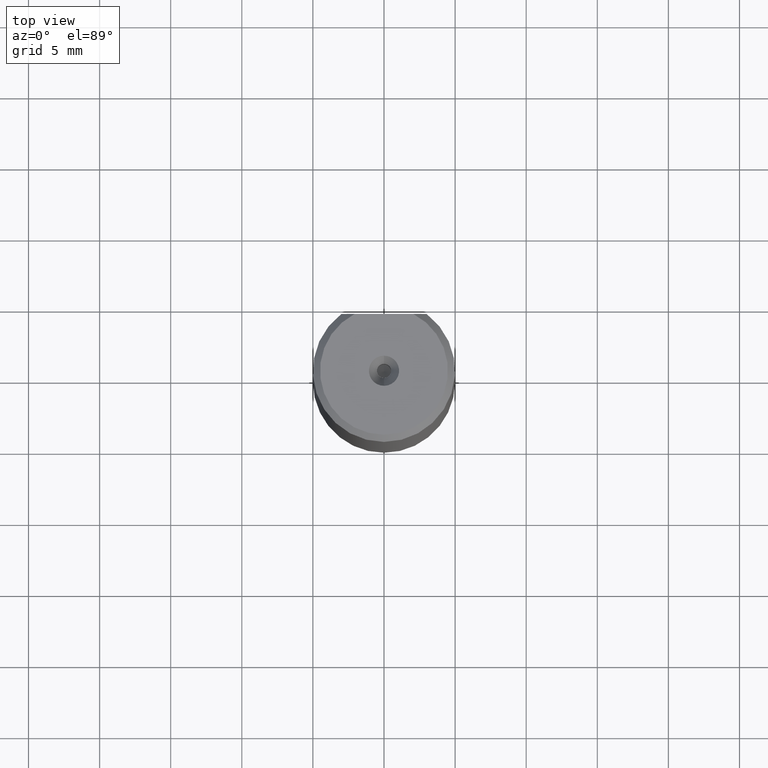
[diagram: clean part render]
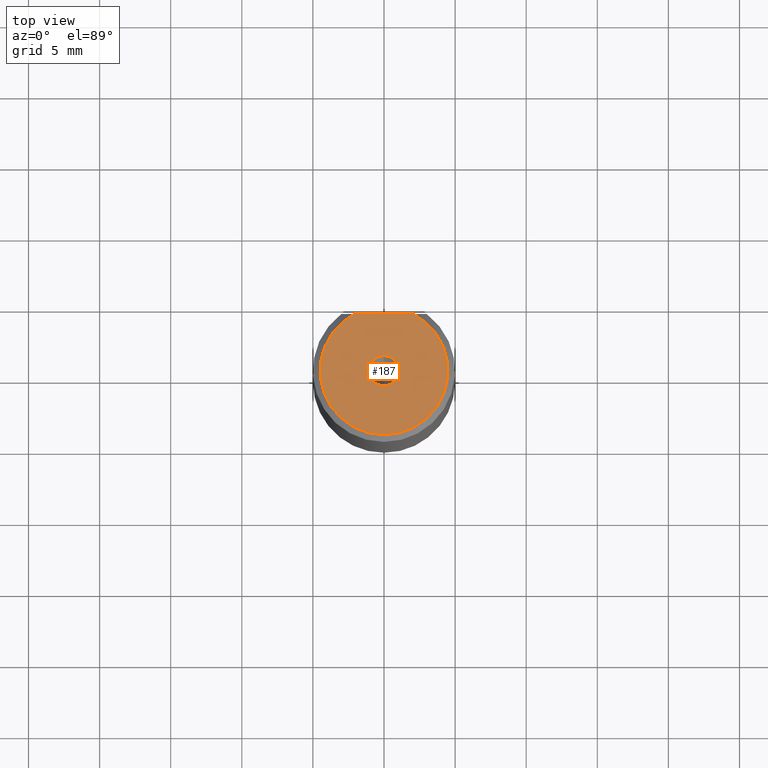
[diagram: same view with one face highlighted and labeled with its STEP entity id]
A machine part, top view. The second image highlights one B-rep face of the part: STEP entity #187.
In plain terms, the highlighted planar face has unit normal (0, 0, 1).
Its self-contained STEP definition (entity closure, byte-faithful):
#187=ADVANCED_FACE('',(#271,#272),#251,.T.);
#251=PLANE('',#1223);
#271=FACE_BOUND('',#277,.T.);
#272=FACE_BOUND('',#278,.T.);
#277=EDGE_LOOP('',(#488,#489,#490));
#278=EDGE_LOOP('',(#491,#492));
#344=LINE('',#1719,#416);
#416=VECTOR('',#1375,1.);
#488=ORIENTED_EDGE('',*,*,#936,.F.);
#489=ORIENTED_EDGE('',*,*,#937,.F.);
#490=ORIENTED_EDGE('',*,*,#938,.T.);
#491=ORIENTED_EDGE('',*,*,#939,.F.);
#492=ORIENTED_EDGE('',*,*,#940,.F.);
#826=VERTEX_POINT('',#1715);
#827=VERTEX_POINT('',#1716);
#828=VERTEX_POINT('',#1718);
#829=VERTEX_POINT('',#1721);
#830=VERTEX_POINT('',#1722);
#936=EDGE_CURVE('',#826,#827,#1105,.T.);
#937=EDGE_CURVE('',#828,#826,#1106,.T.);
#938=EDGE_CURVE('',#828,#827,#344,.T.);
#939=EDGE_CURVE('',#829,#830,#1107,.T.);
#940=EDGE_CURVE('',#830,#829,#1108,.T.);
#1105=CIRCLE('',#1219,4.5);
#1106=CIRCLE('',#1220,4.5);
#1107=CIRCLE('',#1221,1.06);
#1108=CIRCLE('',#1222,1.06);
#1219=AXIS2_PLACEMENT_3D('',#1714,#1371,#1372);
#1220=AXIS2_PLACEMENT_3D('',#1717,#1373,#1374);
#1221=AXIS2_PLACEMENT_3D('',#1720,#1376,#1377);
#1222=AXIS2_PLACEMENT_3D('',#1723,#1378,#1379);
#1223=AXIS2_PLACEMENT_3D('',#1724,#1380,#1381);
#1371=DIRECTION('',(0.,0.,-1.));
#1372=DIRECTION('',(0.,-1.,0.));
#1373=DIRECTION('',(0.,0.,-1.));
#1374=DIRECTION('',(0.458122847290885,0.888888888888871,0.));
#1375=DIRECTION('',(-1.,0.,0.));
#1376=DIRECTION('',(0.,0.,1.));
#1377=DIRECTION('',(0.,-1.,0.));
#1378=DIRECTION('',(0.,0.,1.));
#1379=DIRECTION('',(0.,1.,0.));
#1380=DIRECTION('',(0.,0.,1.));
#1381=DIRECTION('',(0.,1.,0.));
#1714=CARTESIAN_POINT('',(0.,0.,-4.085620730621E-14));
#1715=CARTESIAN_POINT('',(0.,-4.5,-4.085620730621E-14));
#1716=CARTESIAN_POINT('',(-2.061552812809,4.,-1.59872115546E-14));
#1717=CARTESIAN_POINT('',(0.,0.,-4.085620730621E-14));
#1718=CARTESIAN_POINT('',(2.061552812809,4.,-1.42108547152E-14));
#1719=CARTESIAN_POINT('',(2.061552812809,4.,-1.42108547152E-14));
#1720=CARTESIAN_POINT('',(0.,0.,0.));
#1721=CARTESIAN_POINT('',(0.,-1.06,0.));
#1722=CARTESIAN_POINT('',(0.,1.06,0.));
#1723=CARTESIAN_POINT('',(0.,0.,0.));
#1724=CARTESIAN_POINT('',(-1.771337414525E-7,-0.25,0.));